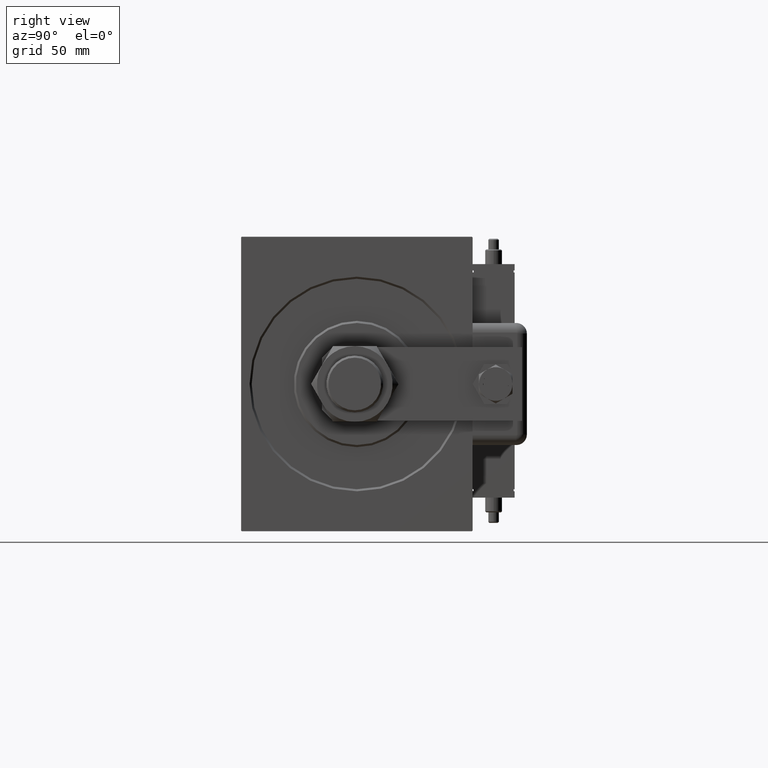
[diagram: clean part render]
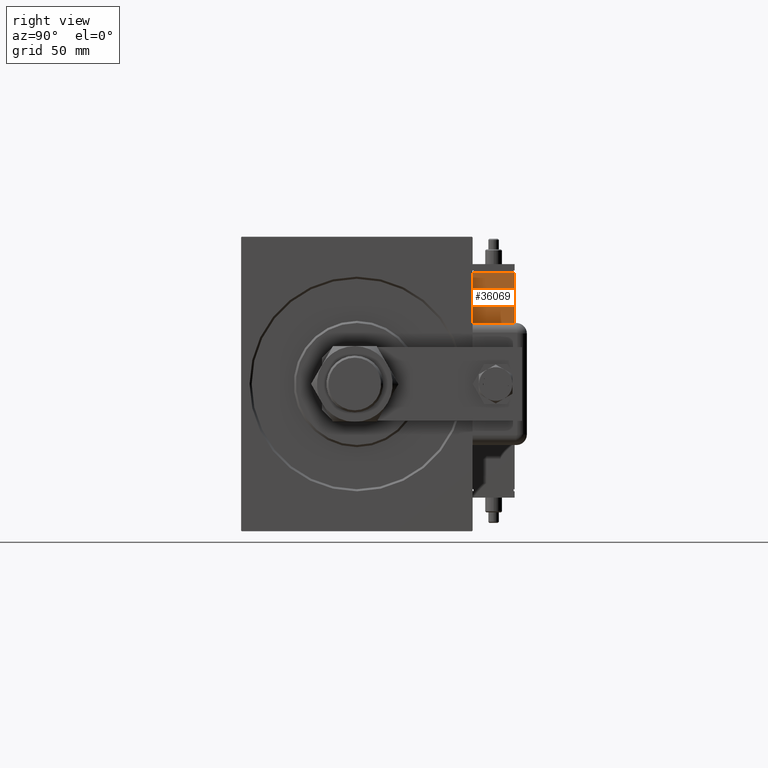
[diagram: same view with one face highlighted and labeled with its STEP entity id]
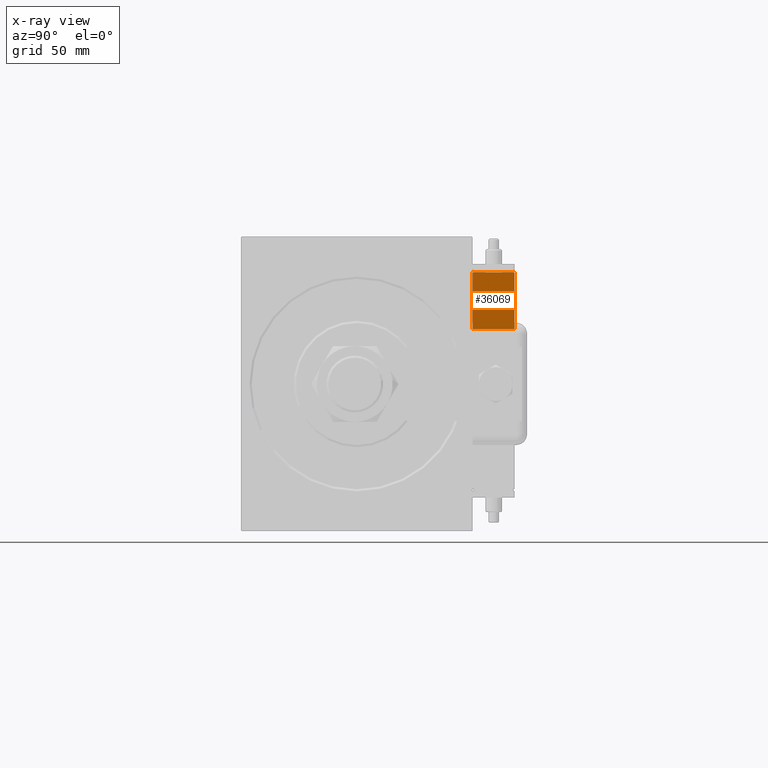
[diagram: x-ray of the same camera — body ghosted, the highlighted face saturated]
A machine part, right view. The second image highlights one B-rep face of the part: STEP entity #36069.
The next image is the same camera in x-ray: the body ghosted, the highlighted face saturated — about 0% of this face is hidden behind the body in this view.
In plain terms, the highlighted planar face has unit normal (-1, 0, 0).
Its self-contained STEP definition (entity closure, byte-faithful):
#2735 = FACE_OUTER_BOUND ( 'NONE', #48574, .T. ) ;
#3306 = LINE ( 'NONE', #26546, #23743 ) ;
#3943 = AXIS2_PLACEMENT_3D ( 'NONE', #59329, #45475, #7438 ) ;
#4143 = VERTEX_POINT ( 'NONE', #26993 ) ;
#7438 = DIRECTION ( 'NONE',  ( -1.284980352575412699E-16, -1.000000000000000000, 0.000000000000000000 ) ) ;
#8407 = VECTOR ( 'NONE', #62159, 1000.000000000000000 ) ;
#8856 = CARTESIAN_POINT ( 'NONE',  ( 20.00000000000005329, -13.49999999999996092, 10.00000000000000000 ) ) ;
#12484 = EDGE_CURVE ( 'NONE', #40256, #4143, #24082, .T. ) ;
#15508 = EDGE_CURVE ( 'NONE', #34815, #25550, #3306, .T. ) ;
#15641 = DIRECTION ( 'NONE',  ( 1.284980352575412699E-16, 1.000000000000000000, 0.000000000000000000 ) ) ;
#16283 = VECTOR ( 'NONE', #18272, 1000.000000000000000 ) ;
#16983 = CARTESIAN_POINT ( 'NONE',  ( 20.00000000000005329, -13.49999999999996092, 10.00000000000000000 ) ) ;
#18272 = DIRECTION ( 'NONE',  ( 1.284980352575412699E-16, 1.000000000000000000, 0.000000000000000000 ) ) ;
#18982 = CARTESIAN_POINT ( 'NONE',  ( 20.00000000000005684, 13.50000000000003730, -10.00000000000000000 ) ) ;
#21834 = ORIENTED_EDGE ( 'NONE', *, *, #12484, .T. ) ;
#22050 = ORIENTED_EDGE ( 'NONE', *, *, #15508, .F. ) ;
#23743 = VECTOR ( 'NONE', #45425, 1000.000000000000000 ) ;
#24082 = LINE ( 'NONE', #28202, #8407 ) ;
#24192 = LINE ( 'NONE', #8856, #16283 ) ;
#24441 = CARTESIAN_POINT ( 'NONE',  ( 20.00000000000005329, -13.49999999999996092, -10.00000000000000000 ) ) ;
#25550 = VERTEX_POINT ( 'NONE', #18982 ) ;
#26546 = CARTESIAN_POINT ( 'NONE',  ( 20.00000000000005684, 13.50000000000003730, 10.00000000000000000 ) ) ;
#26993 = CARTESIAN_POINT ( 'NONE',  ( 20.00000000000005329, -13.49999999999996092, -10.00000000000000000 ) ) ;
#28202 = CARTESIAN_POINT ( 'NONE',  ( 20.00000000000005329, -13.49999999999996092, 10.00000000000000000 ) ) ;
#31321 = PLANE ( 'NONE',  #3943 ) ;
#34815 = VERTEX_POINT ( 'NONE', #58456 ) ;
#36007 = ORIENTED_EDGE ( 'NONE', *, *, #48359, .T. ) ;
#36069 = ADVANCED_FACE ( 'NONE', ( #2735 ), #31321, .F. ) ;
#39234 = LINE ( 'NONE', #24441, #52476 ) ;
#40256 = VERTEX_POINT ( 'NONE', #16983 ) ;
#45425 = DIRECTION ( 'NONE',  ( -0.000000000000000000, -0.000000000000000000, -1.000000000000000000 ) ) ;
#45475 = DIRECTION ( 'NONE',  ( -1.000000000000000000, 1.284980352575412699E-16, 0.000000000000000000 ) ) ;
#46981 = ORIENTED_EDGE ( 'NONE', *, *, #47004, .F. ) ;
#47004 = EDGE_CURVE ( 'NONE', #40256, #34815, #24192, .T. ) ;
#48359 = EDGE_CURVE ( 'NONE', #4143, #25550, #39234, .T. ) ;
#48574 = EDGE_LOOP ( 'NONE', ( #36007, #22050, #46981, #21834 ) ) ;
#52476 = VECTOR ( 'NONE', #15641, 1000.000000000000000 ) ;
#58456 = CARTESIAN_POINT ( 'NONE',  ( 20.00000000000005684, 13.50000000000003730, 10.00000000000000000 ) ) ;
#59329 = CARTESIAN_POINT ( 'NONE',  ( 20.00000000000005329, -13.49999999999996092, 10.00000000000000000 ) ) ;
#62159 = DIRECTION ( 'NONE',  ( -0.000000000000000000, -0.000000000000000000, -1.000000000000000000 ) ) ;